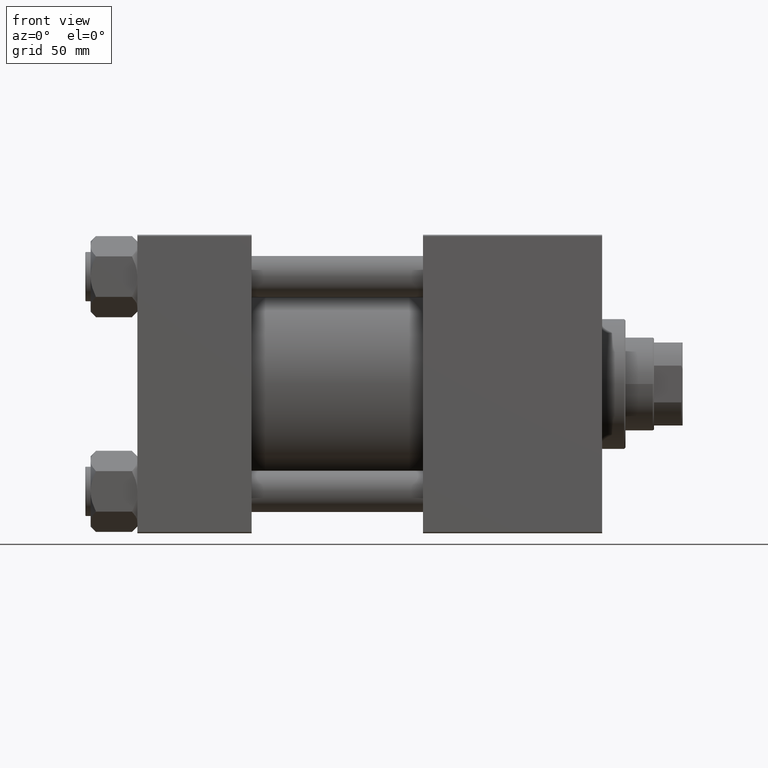
[diagram: clean part render]
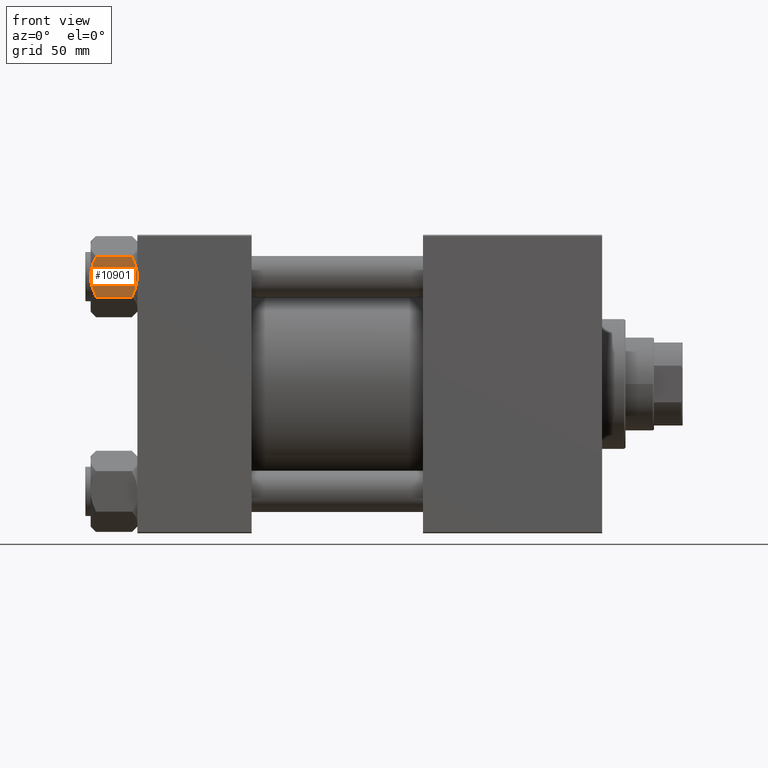
[diagram: same view with one face highlighted and labeled with its STEP entity id]
A machine part, front view. The second image highlights one B-rep face of the part: STEP entity #10901.
In plain terms, the highlighted planar face has unit normal (0, 1, -0).
Its self-contained STEP definition (entity closure, byte-faithful):
#86 = ORIENTED_EDGE ( 'NONE', *, *, #8301, .F. ) ;
#1046 = DIRECTION ( 'NONE',  ( -0.000000000000000000, -0.000000000000000000, 1.000000000000000000 ) ) ;
#1047 = VECTOR ( 'NONE', #27387, 1000.000000000000000 ) ;
#1972 = AXIS2_PLACEMENT_3D ( 'NONE', #14647, #42037, #45891 ) ;
#2108 = CARTESIAN_POINT ( 'NONE',  ( -1.502314598737160017E-15, 13.52731680711293727, 0.000000000000000000 ) ) ;
#2343 = VECTOR ( 'NONE', #1046, 1000.000000000000000 ) ;
#2910 = VERTEX_POINT ( 'NONE', #13331 ) ;
#4716 = VERTEX_POINT ( 'NONE', #44578 ) ;
#4826 = CARTESIAN_POINT ( 'NONE',  ( 2.638177715023106717, 13.52731680711294260, -0.2001540676698861931 ) ) ;
#7539 = DIRECTION ( 'NONE',  ( -0.000000000000000000, -0.000000000000000000, 1.000000000000000000 ) ) ;
#8301 = EDGE_CURVE ( 'NONE', #19557, #4716, #31236, .T. ) ;
#9397 = DIRECTION ( 'NONE',  ( 1.000000000000000000, 1.110578409716265846E-16, 0.000000000000000000 ) ) ;
#9904 = LINE ( 'NONE', #41388, #35497 ) ;
#10358 = EDGE_CURVE ( 'NONE', #49300, #31020, #9904, .T. ) ;
#10441 = CARTESIAN_POINT ( 'NONE',  ( 4.557734399832398253, 13.52731680711293905, -17.26585298258848056 ) ) ;
#10701 = CARTESIAN_POINT ( 'NONE',  ( 5.184073258379385152, 13.52731680711294260, -17.05185620934991064 ) ) ;
#10744 = B_SPLINE_CURVE_WITH_KNOTS ( 'NONE', 3,
 ( #26835, #38851, #22999, #19653, #15813, #31436, #47055, #30436 ),
 .UNSPECIFIED., .F., .F.,
 ( 4, 2, 2, 4 ),
 ( 0.01980594295952730829, 0.02179054093496184119, 0.02377513891039637409, 0.02774433486126544682 ),
 .UNSPECIFIED. ) ;
#10814 = CARTESIAN_POINT ( 'NONE',  ( -1.333889873825134353, 13.52731680711293905, -0.06156641003439419085 ) ) ;
#10901 = ADVANCED_FACE ( 'NONE', ( #49716 ), #25904, .F. ) ;
#10963 = CARTESIAN_POINT ( 'NONE',  ( 1.663410456966167184, 13.52731680711293905, -17.90195050864299375 ) ) ;
#11162 = CARTESIAN_POINT ( 'NONE',  ( -7.809999999999996945, 13.52731680711293727, -1.999999999999998224 ) ) ;
#11833 = LINE ( 'NONE', #47659, #2343 ) ;
#12269 = CARTESIAN_POINT ( 'NONE',  ( 5.189513245496327976, 13.52731680711294082, -0.9501108431732597781 ) ) ;
#12513 = CARTESIAN_POINT ( 'NONE',  ( 7.622943475354644782, 13.52731680711293727, -2.000000000000000000 ) ) ;
#13331 = CARTESIAN_POINT ( 'NONE',  ( -7.809999999999996945, 13.52731680711293727, -1.999999999999998224 ) ) ;
#13636 = CARTESIAN_POINT ( 'NONE',  ( -7.622943475354648335, 13.52731680711293727, -2.000000000000000000 ) ) ;
#14392 = CARTESIAN_POINT ( 'NONE',  ( -2.644243758052991389, 13.52731680711293905, -0.2408281198023998759 ) ) ;
#14581 = CARTESIAN_POINT ( 'NONE',  ( -1.502314598737160017E-15, 13.52731680711293727, -18.00000000000000000 ) ) ;
#14647 = CARTESIAN_POINT ( 'NONE',  ( -7.809999999999996945, 13.52731680711293727, -18.00000000000000000 ) ) ;
#14660 = CARTESIAN_POINT ( 'NONE',  ( -4.557734399832416905, 13.52731680711293905, -0.7341470174115153347 ) ) ;
#15091 = CARTESIAN_POINT ( 'NONE',  ( 0.6693083573771171357, 13.52731680711294082, -17.98750666918890673 ) ) ;
#15813 = CARTESIAN_POINT ( 'NONE',  ( -4.553769687922292420, 13.52731680711293905, -17.26727080048547691 ) ) ;
#16839 = EDGE_CURVE ( 'NONE', #39365, #2910, #42649, .T. ) ;
#17977 = CARTESIAN_POINT ( 'NONE',  ( -0.6693083573771214656, 13.52731680711293727, -0.01249333081108175945 ) ) ;
#18146 = CARTESIAN_POINT ( 'NONE',  ( -7.622943475354626131, 13.52731680711293727, -16.00000000000000000 ) ) ;
#18485 = CARTESIAN_POINT ( 'NONE',  ( -0.3330234424833839468, 13.52731680711293727, -8.499975625696903903E-16 ) ) ;
#18658 = LINE ( 'NONE', #37608, #18967 ) ;
#18842 = DIRECTION ( 'NONE',  ( -1.000000000000000000, -1.110578409716265846E-16, 0.000000000000000000 ) ) ;
#18967 = VECTOR ( 'NONE', #49383, 1000.000000000000000 ) ;
#19069 = CARTESIAN_POINT ( 'NONE',  ( 7.810000000000001386, 13.52731680711293905, -18.00000000000000000 ) ) ;
#19146 = CARTESIAN_POINT ( 'NONE',  ( 7.622943475354622578, 13.52731680711293727, -16.00000000000000000 ) ) ;
#19212 = EDGE_CURVE ( 'NONE', #4716, #47439, #35738, .T. ) ;
#19557 = VERTEX_POINT ( 'NONE', #30433 ) ;
#19653 = CARTESIAN_POINT ( 'NONE',  ( -5.189513245496315541, 13.52731680711293727, -17.04988915682673678 ) ) ;
#19857 = ORIENTED_EDGE ( 'NONE', *, *, #10358, .F. ) ;
#20260 = CARTESIAN_POINT ( 'NONE',  ( -7.622943475354648335, 13.52731680711293727, -2.000000000000000000 ) ) ;
#20599 = VERTEX_POINT ( 'NONE', #41665 ) ;
#20704 = CARTESIAN_POINT ( 'NONE',  ( -1.502314598737160017E-15, 13.52731680711293727, 0.000000000000000000 ) ) ;
#20794 = VECTOR ( 'NONE', #18842, 1000.000000000000000 ) ;
#20913 = ORIENTED_EDGE ( 'NONE', *, *, #19212, .F. ) ;
#21816 = CARTESIAN_POINT ( 'NONE',  ( -7.030203932307583337, 13.52731680711293372, -1.709001877891392907 ) ) ;
#22518 = CARTESIAN_POINT ( 'NONE',  ( 0.3330234424833806162, 13.52731680711293905, -17.99999999999998579 ) ) ;
#22999 = CARTESIAN_POINT ( 'NONE',  ( -6.427364677720452946, 13.52731680711293905, -16.56149306284485334 ) ) ;
#23291 = CARTESIAN_POINT ( 'NONE',  ( -7.809999999999996945, 13.52731680711293727, -1.999999999999998224 ) ) ;
#24557 = CARTESIAN_POINT ( 'NONE',  ( 7.030888348548061551, 13.52731680711294082, -1.709337883550299697 ) ) ;
#25053 = EDGE_CURVE ( 'NONE', #44853, #47062, #27868, .T. ) ;
#25671 = CARTESIAN_POINT ( 'NONE',  ( -3.287826776903158166, 13.52731680711293905, -0.3804584453753378503 ) ) ;
#25904 = PLANE ( 'NONE',  #1972 ) ;
#26067 = CARTESIAN_POINT ( 'NONE',  ( 6.422751913021802039, 13.52731680711294260, -16.56349088907410660 ) ) ;
#26828 = CARTESIAN_POINT ( 'NONE',  ( 3.287826776903140402, 13.52731680711293905, -17.61954155462465721 ) ) ;
#26835 = CARTESIAN_POINT ( 'NONE',  ( -7.622943475354626131, 13.52731680711293727, -16.00000000000000000 ) ) ;
#27387 = DIRECTION ( 'NONE',  ( -1.000000000000000000, -1.110578409716265846E-16, 0.000000000000000000 ) ) ;
#27868 = B_SPLINE_CURVE_WITH_KNOTS ( 'NONE', 3,
 ( #14581, #22518, #15091, #50134, #10963, #49882, #26828, #10441, #10701, #26067, #38096, #19146 ),
 .UNSPECIFIED., .F., .F.,
 ( 4, 2, 2, 2, 2, 4 ),
 ( 0.02774433486126544682, 0.02873404020403548184, 0.02972374554680551340, 0.03170315623234558344, 0.03368256691788565349, 0.03566197760342572354 ),
 .UNSPECIFIED. ) ;
#28130 = ORIENTED_EDGE ( 'NONE', *, *, #50326, .T. ) ;
#29208 = CARTESIAN_POINT ( 'NONE',  ( -7.809999999999996945, 13.52731680711293727, -16.00000000000000000 ) ) ;
#29282 = VECTOR ( 'NONE', #7539, 1000.000000000000000 ) ;
#29327 = EDGE_CURVE ( 'NONE', #20599, #19557, #34178, .T. ) ;
#29513 = CARTESIAN_POINT ( 'NONE',  ( -6.422751913021828685, 13.52731680711293905, -1.436509110925899391 ) ) ;
#30433 = CARTESIAN_POINT ( 'NONE',  ( 7.810000000000000497, 13.52731680711293905, -1.999999999999998224 ) ) ;
#30436 = CARTESIAN_POINT ( 'NONE',  ( -1.502314598737160017E-15, 13.52731680711293727, -18.00000000000000000 ) ) ;
#30815 = CARTESIAN_POINT ( 'NONE',  ( -1.502314598737160017E-15, 13.52731680711293727, -18.00000000000000000 ) ) ;
#31020 = VERTEX_POINT ( 'NONE', #18146 ) ;
#31236 = LINE ( 'NONE', #23291, #1047 ) ;
#31436 = CARTESIAN_POINT ( 'NONE',  ( -2.638177715023100056, 13.52731680711293905, -17.79984593233010770 ) ) ;
#31885 = ORIENTED_EDGE ( 'NONE', *, *, #16839, .F. ) ;
#32269 = ORIENTED_EDGE ( 'NONE', *, *, #25053, .F. ) ;
#32792 = EDGE_CURVE ( 'NONE', #47439, #39365, #48734, .T. ) ;
#32955 = ORIENTED_EDGE ( 'NONE', *, *, #34315, .F. ) ;
#33197 = ORIENTED_EDGE ( 'NONE', *, *, #32792, .F. ) ;
#34178 = LINE ( 'NONE', #19069, #29282 ) ;
#34315 = EDGE_CURVE ( 'NONE', #31020, #44853, #10744, .T. ) ;
#35140 = CARTESIAN_POINT ( 'NONE',  ( -1.502314598737160017E-15, 13.52731680711293727, 0.000000000000000000 ) ) ;
#35497 = VECTOR ( 'NONE', #9397, 1000.000000000000000 ) ;
#35738 = B_SPLINE_CURVE_WITH_KNOTS ( 'NONE', 3,
 ( #12513, #24557, #43756, #12269, #40170, #4826, #47107, #20704 ),
 .UNSPECIFIED., .F., .F.,
 ( 4, 2, 2, 4 ),
 ( 0.01980594295952729095, 0.02179054093496183425, 0.02377513891039637409, 0.02774433486126545723 ),
 .UNSPECIFIED. ) ;
#37608 = CARTESIAN_POINT ( 'NONE',  ( -7.809999999999996945, 13.52731680711293727, -16.00000000000000000 ) ) ;
#37790 = EDGE_LOOP ( 'NONE', ( #19857, #28130, #31885, #33197, #20913, #86, #38381, #46505, #32269, #32955 ) ) ;
#38096 = CARTESIAN_POINT ( 'NONE',  ( 7.030203932307562908, 13.52731680711294260, -16.29099812210860065 ) ) ;
#38381 = ORIENTED_EDGE ( 'NONE', *, *, #29327, .F. ) ;
#38748 = EDGE_CURVE ( 'NONE', #47062, #20599, #18658, .T. ) ;
#38851 = CARTESIAN_POINT ( 'NONE',  ( -7.030888348548044675, 13.52731680711294082, -16.29066211644970252 ) ) ;
#39365 = VERTEX_POINT ( 'NONE', #20260 ) ;
#40170 = CARTESIAN_POINT ( 'NONE',  ( 4.553769687922307519, 13.52731680711294260, -0.7327291995145179815 ) ) ;
#41388 = CARTESIAN_POINT ( 'NONE',  ( -7.809999999999996945, 13.52731680711293727, -16.00000000000000000 ) ) ;
#41665 = CARTESIAN_POINT ( 'NONE',  ( 7.810000000000000497, 13.52731680711293905, -16.00000000000000000 ) ) ;
#42037 = DIRECTION ( 'NONE',  ( 1.110578409716265846E-16, -1.000000000000000000, 0.000000000000000000 ) ) ;
#42649 = LINE ( 'NONE', #11162, #20794 ) ;
#43756 = CARTESIAN_POINT ( 'NONE',  ( 6.427364677720470709, 13.52731680711294082, -1.438506937155140442 ) ) ;
#44578 = CARTESIAN_POINT ( 'NONE',  ( 7.622943475354644782, 13.52731680711293727, -2.000000000000000000 ) ) ;
#44853 = VERTEX_POINT ( 'NONE', #30815 ) ;
#45891 = DIRECTION ( 'NONE',  ( 1.000000000000000000, 1.110578409716265846E-16, 0.000000000000000000 ) ) ;
#46245 = CARTESIAN_POINT ( 'NONE',  ( 7.622943475354622578, 13.52731680711293727, -16.00000000000000000 ) ) ;
#46505 = ORIENTED_EDGE ( 'NONE', *, *, #38748, .F. ) ;
#47055 = CARTESIAN_POINT ( 'NONE',  ( -1.335584685993412180, 13.52731680711293549, -17.99999999999998224 ) ) ;
#47062 = VERTEX_POINT ( 'NONE', #46245 ) ;
#47107 = CARTESIAN_POINT ( 'NONE',  ( 1.335584685993415732, 13.52731680711294260, -9.825582188149885905E-16 ) ) ;
#47439 = VERTEX_POINT ( 'NONE', #35140 ) ;
#47659 = CARTESIAN_POINT ( 'NONE',  ( -7.809999999999996945, 13.52731680711293727, -18.00000000000000000 ) ) ;
#48709 = CARTESIAN_POINT ( 'NONE',  ( -1.663410456966174955, 13.52731680711293905, -0.09804949135699160545 ) ) ;
#48734 = B_SPLINE_CURVE_WITH_KNOTS ( 'NONE', 3,
 ( #2108, #18485, #17977, #10814, #48709, #14392, #25671, #14660, #49729, #29513, #21816, #13636 ),
 .UNSPECIFIED., .F., .F.,
 ( 4, 2, 2, 2, 2, 4 ),
 ( 0.02774433486126545723, 0.02873404020403549572, 0.02972374554680553421, 0.03170315623234561120, 0.03368256691788568125, 0.03566197760342575823 ),
 .UNSPECIFIED. ) ;
#49300 = VERTEX_POINT ( 'NONE', #29208 ) ;
#49383 = DIRECTION ( 'NONE',  ( 1.000000000000000000, 1.110578409716265846E-16, 0.000000000000000000 ) ) ;
#49716 = FACE_OUTER_BOUND ( 'NONE', #37790, .T. ) ;
#49729 = CARTESIAN_POINT ( 'NONE',  ( -5.184073258379408244, 13.52731680711293727, -0.9481437906500859158 ) ) ;
#49882 = CARTESIAN_POINT ( 'NONE',  ( 2.644243758052981175, 13.52731680711294082, -17.75917188019759507 ) ) ;
#50134 = CARTESIAN_POINT ( 'NONE',  ( 1.333889873825127248, 13.52731680711293549, -17.93843358996559090 ) ) ;
#50326 = EDGE_CURVE ( 'NONE', #49300, #2910, #11833, .T. ) ;